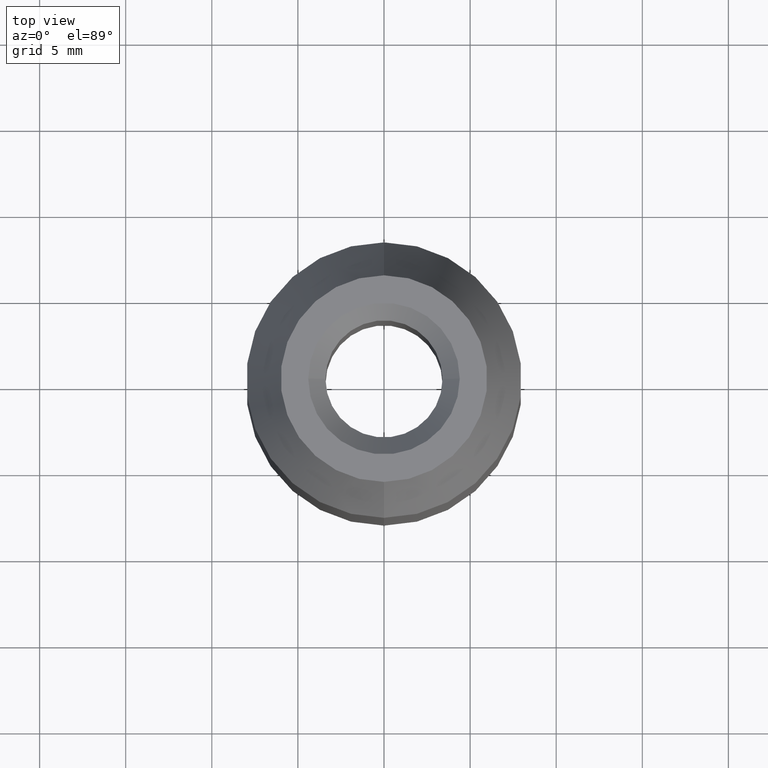
[diagram: clean part render]
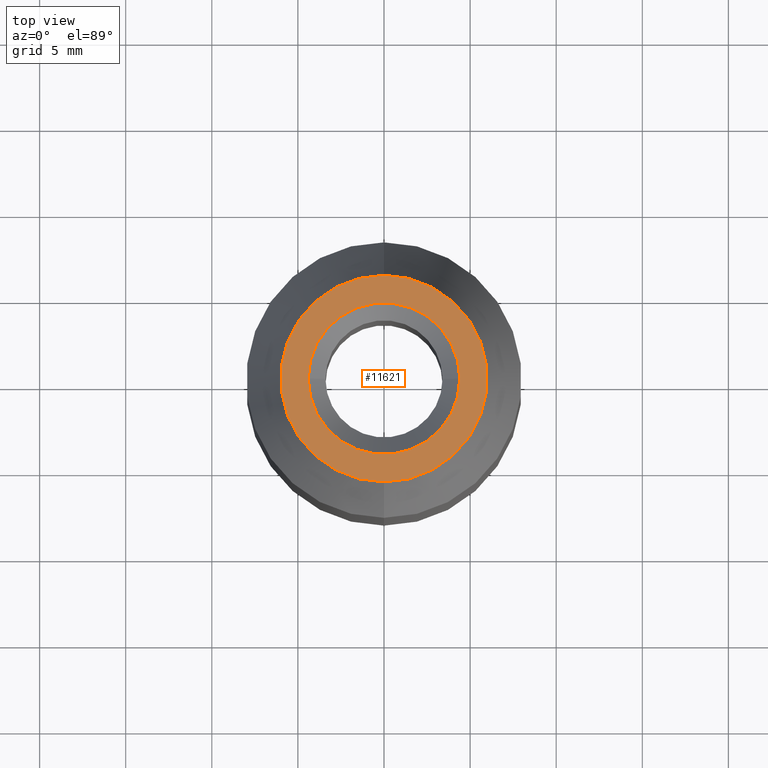
[diagram: same view with one face highlighted and labeled with its STEP entity id]
A machine part, top view. The second image highlights one B-rep face of the part: STEP entity #11621.
In plain terms, the highlighted planar face has unit normal (0, 0, -1).
Its self-contained STEP definition (entity closure, byte-faithful):
#118 = ORIENTED_EDGE ( 'NONE', *, *, #8542, .T. ) ;
#616 = EDGE_CURVE ( 'NONE', #11833, #10170, #1629, .T. ) ;
#1014 = CIRCLE ( 'NONE', #7749, 4.400000000000001243 ) ;
#1095 = DIRECTION ( 'NONE',  ( -0.000000000000000000, -2.139922160430262120E-32, 1.000000000000000000 ) ) ;
#1304 = ORIENTED_EDGE ( 'NONE', *, *, #616, .T. ) ;
#1629 = CIRCLE ( 'NONE', #2414, 5.999999999999997335 ) ;
#2281 = CARTESIAN_POINT ( 'NONE',  ( 0.000000000000000000, 0.000000000000000000, 18.00000000000000000 ) ) ;
#2414 = AXIS2_PLACEMENT_3D ( 'NONE', #3036, #10516, #4105 ) ;
#3036 = CARTESIAN_POINT ( 'NONE',  ( 0.000000000000000000, -3.851859888774471706E-31, 18.00000000000000000 ) ) ;
#3289 = DIRECTION ( 'NONE',  ( 0.000000000000000000, -1.000000000000000000, 0.000000000000000000 ) ) ;
#3591 = AXIS2_PLACEMENT_3D ( 'NONE', #6965, #7069, #11304 ) ;
#4105 = DIRECTION ( 'NONE',  ( 0.000000000000000000, -1.000000000000000000, 0.000000000000000000 ) ) ;
#4601 = DIRECTION ( 'NONE',  ( 0.000000000000000000, 1.000000000000000000, 0.000000000000000000 ) ) ;
#4808 = DIRECTION ( 'NONE',  ( 0.000000000000000000, 1.000000000000000000, 2.139922160430262120E-32 ) ) ;
#4862 = CARTESIAN_POINT ( 'NONE',  ( 0.000000000000000000, 5.999999999999997335, 18.00000000000000000 ) ) ;
#5021 = VERTEX_POINT ( 'NONE', #12903 ) ;
#5879 = VERTEX_POINT ( 'NONE', #7505 ) ;
#6036 = EDGE_LOOP ( 'NONE', ( #1304, #7719 ) ) ;
#6965 = CARTESIAN_POINT ( 'NONE',  ( 0.000000000000000000, 0.000000000000000000, 18.00000000000000000 ) ) ;
#7069 = DIRECTION ( 'NONE',  ( 0.000000000000000000, 2.139922160430262120E-32, -1.000000000000000000 ) ) ;
#7453 = CARTESIAN_POINT ( 'NONE',  ( 0.000000000000000000, -3.851859888774471706E-31, 18.00000000000000000 ) ) ;
#7505 = CARTESIAN_POINT ( 'NONE',  ( -4.400000000000001243, 5.388445916248355985E-16, 18.00000000000000000 ) ) ;
#7719 = ORIENTED_EDGE ( 'NONE', *, *, #11438, .T. ) ;
#7749 = AXIS2_PLACEMENT_3D ( 'NONE', #2281, #9783, #4601 ) ;
#7912 = ORIENTED_EDGE ( 'NONE', *, *, #12205, .T. ) ;
#7935 = AXIS2_PLACEMENT_3D ( 'NONE', #4862, #12349, #4808 ) ;
#8070 = FACE_BOUND ( 'NONE', #13524, .T. ) ;
#8111 = PLANE ( 'NONE',  #7935 ) ;
#8227 = FACE_OUTER_BOUND ( 'NONE', #6036, .T. ) ;
#8542 = EDGE_CURVE ( 'NONE', #5879, #5021, #13463, .T. ) ;
#9225 = CARTESIAN_POINT ( 'NONE',  ( 0.000000000000000000, 5.999999999999997335, 18.00000000000000000 ) ) ;
#9430 = AXIS2_PLACEMENT_3D ( 'NONE', #7453, #1095, #3289 ) ;
#9783 = DIRECTION ( 'NONE',  ( 0.000000000000000000, 2.139922160430262120E-32, -1.000000000000000000 ) ) ;
#10170 = VERTEX_POINT ( 'NONE', #11418 ) ;
#10516 = DIRECTION ( 'NONE',  ( -0.000000000000000000, -2.139922160430262120E-32, 1.000000000000000000 ) ) ;
#11304 = DIRECTION ( 'NONE',  ( 0.000000000000000000, 1.000000000000000000, 0.000000000000000000 ) ) ;
#11418 = CARTESIAN_POINT ( 'NONE',  ( 8.572527594031470232E-16, -5.999999999999997335, 18.00000000000000000 ) ) ;
#11438 = EDGE_CURVE ( 'NONE', #10170, #11833, #11911, .T. ) ;
#11621 = ADVANCED_FACE ( 'NONE', ( #8070, #8227 ), #8111, .F. ) ;
#11833 = VERTEX_POINT ( 'NONE', #9225 ) ;
#11911 = CIRCLE ( 'NONE', #9430, 5.999999999999997335 ) ;
#12205 = EDGE_CURVE ( 'NONE', #5021, #5879, #1014, .T. ) ;
#12349 = DIRECTION ( 'NONE',  ( 0.000000000000000000, 2.139922160430262120E-32, -1.000000000000000000 ) ) ;
#12903 = CARTESIAN_POINT ( 'NONE',  ( 4.400000000000001243, 0.000000000000000000, 18.00000000000000000 ) ) ;
#13463 = CIRCLE ( 'NONE', #3591, 4.400000000000001243 ) ;
#13524 = EDGE_LOOP ( 'NONE', ( #7912, #118 ) ) ;